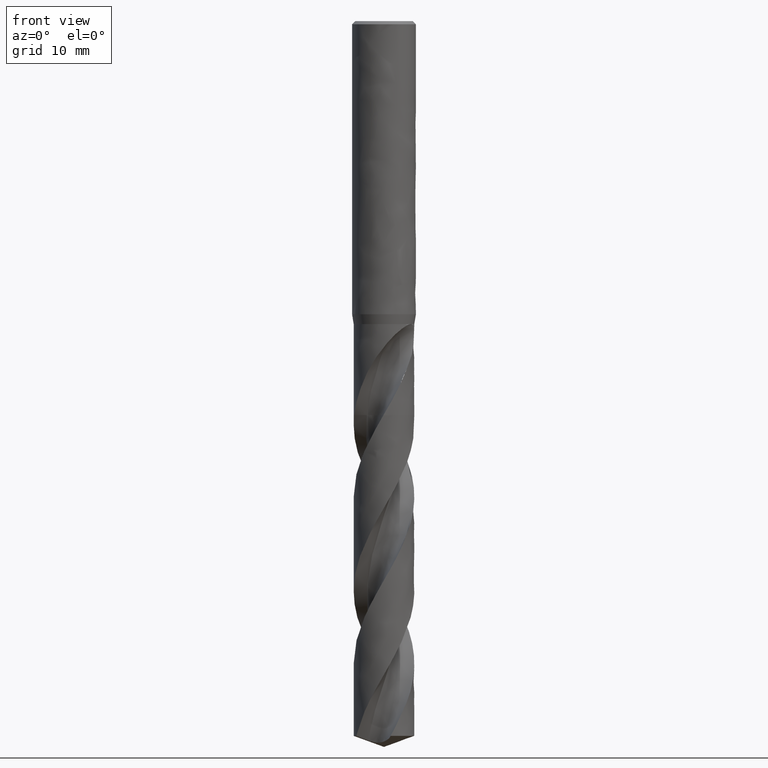
[diagram: clean part render]
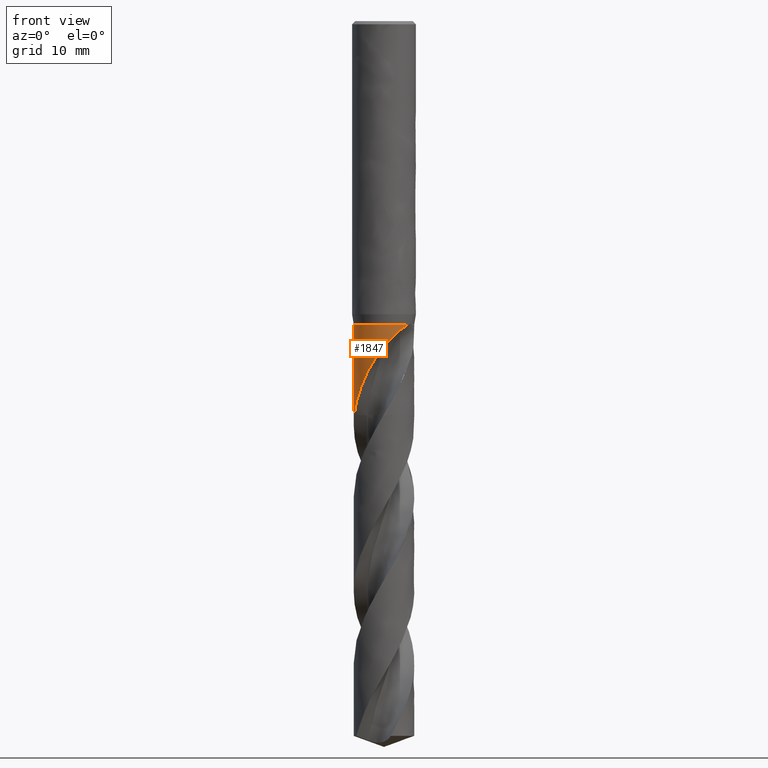
[diagram: same view with one face highlighted and labeled with its STEP entity id]
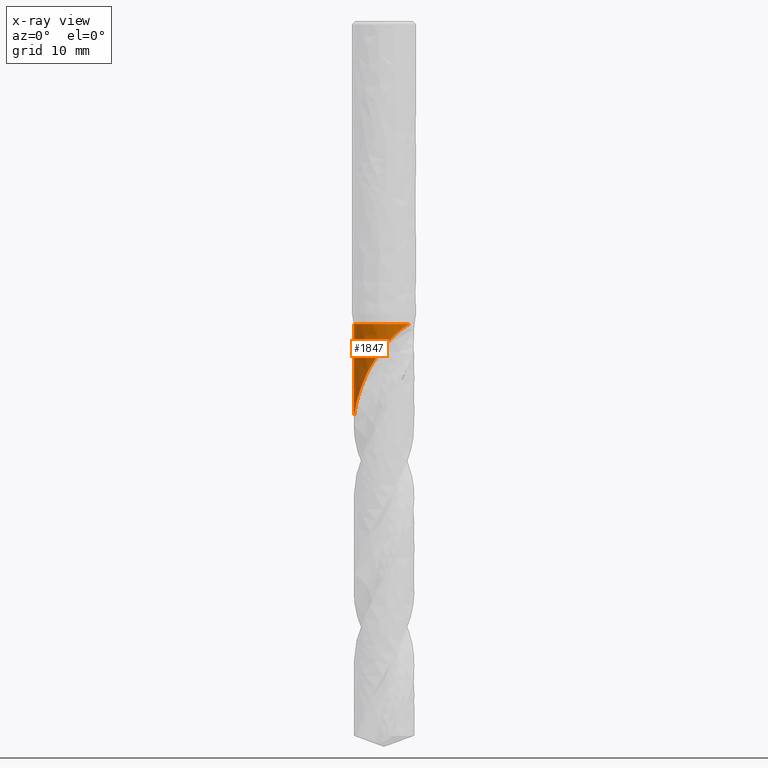
[diagram: x-ray of the same camera — body ghosted, the highlighted face saturated]
A machine part, front view. The second image highlights one B-rep face of the part: STEP entity #1847.
The next image is the same camera in x-ray: the body ghosted, the highlighted face saturated — about 0% of this face is hidden behind the body in this view.
In plain terms, the highlighted face is a freeform B-spline surface patch.
Its self-contained STEP definition (entity closure, byte-faithful):
#131 = VERTEX_POINT('', #132);
#132 = CARTESIAN_POINT('', (-3.8, 2.55951181021797E-15, -38.));
#155 = EDGE_CURVE('', #156, #131, #158, .T.);
#156 = VERTEX_POINT('', #157);
#157 = CARTESIAN_POINT('', (3.2369671558506, -1.99048828982853, -38.));
#158 = CIRCLE('', #159, 3.8);
#159 = AXIS2_PLACEMENT_3D('', #160, #161, #162);
#160 = CARTESIAN_POINT('', (1.42477179352876E-31, 2.32682891837997E-15, -38.));
#161 = DIRECTION('', (3.74939945665464E-33, 6.12323399573677E-17, -1.));
#162 = DIRECTION('', (-1., 6.12323399573677E-17, 0.));
#1443 = EDGE_CURVE('', #1444, #156, #1446, .T.);
#1444 = VERTEX_POINT('', #1445);
#1445 = CARTESIAN_POINT('', (0.489564107406678, -3.76833212240364, -40.2414946850582));
#1446 = B_SPLINE_CURVE_WITH_KNOTS('', 3, (#1447, #1448, #1449, #1450, #1451, #1452, #1453, #1454, #1455, #1456, #1457, #1458, #1459, #1460, #1461, #1462, #1463, #1464, #1465, #1466, #1467, #1468, #1469, #1470, #1471, #1472, #1473, #1474, #1475, #1476, #1477, #1478, #1479, #1480, #1481, #1482, #1483, #1484, #1485, #1486, #1487, #1488, #1489, #1490, #1491, #1492, #1493, #1494, #1495), .UNSPECIFIED., .F., .U., (4, 3, 3, 3, 3, 3, 3, 3, 3, 3, 3, 3, 3, 3, 3, 3, 4), (0., 0.298554134722033, 0.597278639386673, 0.896149436103776, 1.19514646549207, 1.49424399947561, 1.79341047722752, 2.09262276944499, 2.39185257058812, 2.69106328349848, 2.99020496537065, 3.18874874311696, 3.38722023998796, 3.58558962653807, 3.78381663324364, 3.98184667497992, 4.13752270797816), .UNSPECIFIED.);
#1447 = CARTESIAN_POINT('', (0.489564107406676, -3.76833212240363, -40.2414946850582));
#1448 = CARTESIAN_POINT('', (0.553213385328741, -3.76006310552273, -40.1654405330216));
#1449 = CARTESIAN_POINT('', (0.617957758170941, -3.75001104250627, -40.0904574082345));
#1450 = CARTESIAN_POINT('', (0.683611731793444, -3.738004146621, -40.0166384983201));
#1451 = CARTESIAN_POINT('', (0.74930317086163, -3.72599039899956, -39.9427774636384));
#1452 = CARTESIAN_POINT('', (0.815942929246641, -3.71201239502699, -39.8700353121639));
#1453 = CARTESIAN_POINT('', (0.883319341962836, -3.69590948754377, -39.7985072538714));
#1454 = CARTESIAN_POINT('', (0.950728750411051, -3.6797986941076, -39.7269441666934));
#1455 = CARTESIAN_POINT('', (1.01892006119677, -3.66155018030485, -39.6565489037785));
#1456 = CARTESIAN_POINT('', (1.08766649170645, -3.64101381524722, -39.5874327156507));
#1457 = CARTESIAN_POINT('', (1.15644195832689, -3.6204687763404, -39.5182873352393));
#1458 = CARTESIAN_POINT('', (1.2258229301308, -3.59761893538566, -39.4503717300631));
#1459 = CARTESIAN_POINT('', (1.29556600875072, -3.57232539348988, -39.3838180916369));
#1460 = CARTESIAN_POINT('', (1.36533253074699, -3.54702334944546, -39.31724208193));
#1461 = CARTESIAN_POINT('', (1.43551735499118, -3.5192553184531, -39.2519755115987));
#1462 = CARTESIAN_POINT('', (1.50584929262413, -3.48889924014773, -39.1881644377048));
#1463 = CARTESIAN_POINT('', (1.57619744218887, -3.45853616458496, -39.1243386549772));
#1464 = CARTESIAN_POINT('', (1.64675567681687, -3.42555660942475, -39.0619116644643));
#1465 = CARTESIAN_POINT('', (1.71723650748813, -3.38985232382621, -39.0010662411081));
#1466 = CARTESIAN_POINT('', (1.78772813161998, -3.35414257046011, -38.9402114998612));
#1467 = CARTESIAN_POINT('', (1.85821318321162, -3.31567118637305, -38.8808771771637));
#1468 = CARTESIAN_POINT('', (1.92838322130208, -3.27434545394963, -38.8232932845852));
#1469 = CARTESIAN_POINT('', (1.99855736551388, -3.23301730327938, -38.7657060223854));
#1470 = CARTESIAN_POINT('', (2.06849685106044, -3.18878681767468, -38.7098026662392));
#1471 = CARTESIAN_POINT('', (2.13786644394484, -3.14158034559911, -38.6558756053275));
#1472 = CARTESIAN_POINT('', (2.20723161165858, -3.09437688488179, -38.6019519844885));
#1473 = CARTESIAN_POINT('', (2.2761190545756, -3.04413459708637, -38.5499316023483));
#1474 = CARTESIAN_POINT('', (2.34415894366514, -2.99080571867093, -38.500191736047));
#1475 = CARTESIAN_POINT('', (2.41218313524125, -2.93748914378502, -38.4504633452526));
#1476 = CARTESIAN_POINT('', (2.47946705619359, -2.88100259697664, -38.4029343492823));
#1477 = CARTESIAN_POINT('', (2.54559514527083, -2.82133751195662, -38.358101168348));
#1478 = CARTESIAN_POINT('', (2.58948511920682, -2.78173710821051, -38.3283448700769));
#1479 = CARTESIAN_POINT('', (2.63290998265216, -2.74069740590752, -38.2997476385831));
#1480 = CARTESIAN_POINT('', (2.67573346248445, -2.6982309830222, -38.2724949033418));
#1481 = CARTESIAN_POINT('', (2.71854135221041, -2.65578002025481, -38.2452520895979));
#1482 = CARTESIAN_POINT('', (2.76078973820602, -2.61186185585427, -38.219325896941));
#1483 = CARTESIAN_POINT('', (2.8023270963493, -2.5665079086312, -38.1949447994857));
#1484 = CARTESIAN_POINT('', (2.84384308420497, -2.52117729526804, -38.1705762457042));
#1485 = CARTESIAN_POINT('', (2.88469624928916, -2.47435982500247, -38.1477226539312));
#1486 = CARTESIAN_POINT('', (2.92471547503099, -2.426116112249, -38.126668582598));
#1487 = CARTESIAN_POINT('', (2.9647059769297, -2.37790702647322, -38.1056296228475));
#1488 = CARTESIAN_POINT('', (3.00391898156766, -2.32820590027164, -38.0863577216458));
#1489 = CARTESIAN_POINT('', (3.04215777645898, -2.27712012487927, -38.0692103562899));
#1490 = CARTESIAN_POINT('', (3.08035857600754, -2.22608511001821, -38.0520800291285));
#1491 = CARTESIAN_POINT('', (3.11765255229576, -2.17357853481935, -38.0370398815318));
#1492 = CARTESIAN_POINT('', (3.15380925616222, -2.11978470032819, -38.0245403586239));
#1493 = CARTESIAN_POINT('', (3.18223288408691, -2.07749611279913, -38.0147141922321));
#1494 = CARTESIAN_POINT('', (3.20999590945161, -2.03434940631538, -38.0064447756962));
#1495 = CARTESIAN_POINT('', (3.2369671558506, -1.99048828982853, -38.));
#1617 = VERTEX_POINT('', #1618);
#1618 = CARTESIAN_POINT('', (-3.73685384723852, -0.689871962308001, -49.4));
#1625 = EDGE_CURVE('', #1444, #1617, #1626, .T.);
#1626 = B_SPLINE_CURVE_WITH_KNOTS('', 3, (#1627, #1628, #1629, #1630, #1631, #1632, #1633, #1634, #1635, #1636, #1637, #1638, #1639, #1640, #1641, #1642, #1643, #1644, #1645, #1646, #1647, #1648, #1649, #1650, #1651, #1652, #1653, #1654, #1655, #1656, #1657, #1658, #1659, #1660, #1661, #1662, #1663, #1664, #1665, #1666, #1667, #1668, #1669, #1670, #1671, #1672, #1673, #1674, #1675, #1676, #1677, #1678, #1679, #1680, #1681, #1682, #1683, #1684, #1685, #1686, #1687, #1688, #1689, #1690, #1691, #1692, #1693, #1694, #1695, #1696, #1697, #1698, #1699, #1700, #1701, #1702, #1703, #1704, #1705, #1706, #1707, #1708, #1709, #1710, #1711, #1712, #1713, #1714, #1715, #1716, #1717, #1718, #1719, #1720, #1721, #1722, #1723, #1724, #1725, #1726, #1727, #1728, #1729, #1730, #1731, #1732, #1733, #1734, #1735), .UNSPECIFIED., .F., .U., (4, 3, 3, 3, 3, 3, 3, 3, 3, 3, 3, 3, 3, 3, 3, 3, 3, 3, 3, 3, 3, 3, 3, 3, 3, 3, 3, 3, 3, 3, 3, 3, 3, 3, 3, 3, 4), (0., 0.294134643158029, 0.588308651378749, 0.719408372292972, 0.77774237243411, 1.07315450773919, 1.36858020743067, 1.6640223439542, 1.95948719698412, 2.25498054294707, 2.55050294702691, 2.84606495430719, 3.1416715035635, 3.3387444555777, 3.78236233940675, 4.07803646696196, 4.37373792616006, 4.66951707475968, 4.86665790557929, 4.95425006584668, 5.15135784146883, 5.34841308440191, 5.54545205344216, 5.74251208133996, 6.18597374517212, 6.48152257214724, 6.77704682088159, 7.22026659378791, 7.66345803603435, 8.10658773236636, 8.4020535197379, 8.69752907880754, 8.99298797361968, 9.43602196173881, 9.73143849585195, 10.3955751434683, 10.8422441693831), .UNSPECIFIED.);
#1627 = CARTESIAN_POINT('', (0.489564107406678, -3.76833212240364, -40.2414946850582));
#1628 = CARTESIAN_POINT('', (0.426857028617422, -3.77647873317423, -40.3164230088303));
#1629 = CARTESIAN_POINT('', (0.364290718600264, -3.78301482215336, -40.3916615597657));
#1630 = CARTESIAN_POINT('', (0.301967457183936, -3.78798305893807, -40.4671859029295));
#1631 = CARTESIAN_POINT('', (0.239635854828688, -3.79295196063921, -40.5427203537788));
#1632 = CARTESIAN_POINT('', (0.177530398089361, -3.79635389373453, -40.6185610119576));
#1633 = CARTESIAN_POINT('', (0.115753507526413, -3.79823658103274, -40.694688820164));
#1634 = CARTESIAN_POINT('', (0.0882224106741237, -3.79907560750166, -40.7286154558653));
#1635 = CARTESIAN_POINT('', (0.0607543148394016, -3.79961307477393, -40.7626021000416));
#1636 = CARTESIAN_POINT('', (0.0333582034033515, -3.7998535801088, -40.7966473215077));
#1637 = CARTESIAN_POINT('', (0.0211680571754825, -3.79996059512104, -40.8117960490562));
#1638 = CARTESIAN_POINT('', (0.00899192624626865, -3.80000882181379, -40.8269565940103));
#1639 = CARTESIAN_POINT('', (-0.00316950859488086, -3.79999867818599, -40.8421287548095));
#1640 = CARTESIAN_POINT('', (-0.0647568406157482, -3.79994730933176, -40.9189628551294));
#1641 = CARTESIAN_POINT('', (-0.125976372067696, -3.79839850863944, -40.996106133143));
#1642 = CARTESIAN_POINT('', (-0.186740985731427, -3.79540877959783, -41.0735348379153));
#1643 = CARTESIAN_POINT('', (-0.247508389513097, -3.79241891327736, -41.1509670979677));
#1644 = CARTESIAN_POINT('', (-0.307835780958171, -3.78798720721659, -41.2287036055332));
#1645 = CARTESIAN_POINT('', (-0.367636795484675, -3.78217439928488, -41.3067255350489));
#1646 = CARTESIAN_POINT('', (-0.427441137207269, -3.77636126794141, -41.384751805532));
#1647 = CARTESIAN_POINT('', (-0.486732160254077, -3.76916558117911, -41.4630824259465));
#1648 = CARTESIAN_POINT('', (-0.545425517410603, -3.76065300246614, -41.541702248509));
#1649 = CARTESIAN_POINT('', (-0.604123387491514, -3.75213976922213, -41.6203281161391));
#1650 = CARTESIAN_POINT('', (-0.662238691224882, -3.7423073941161, -41.6992592329338));
#1651 = CARTESIAN_POINT('', (-0.719700593242229, -3.73122380139372, -41.7784755566417));
#1652 = CARTESIAN_POINT('', (-0.777168036555299, -3.72013913983332, -41.8576995195168));
#1653 = CARTESIAN_POINT('', (-0.833994375450371, -3.70780057500868, -41.937225592146));
#1654 = CARTESIAN_POINT('', (-0.890109588270239, -3.69428002740312, -42.0170384403543));
#1655 = CARTESIAN_POINT('', (-0.946230319327442, -3.68075815021888, -42.0968591371693));
#1656 = CARTESIAN_POINT('', (-1.00164967587808, -3.66605168794592, -42.176984178901));
#1657 = CARTESIAN_POINT('', (-1.05630245037947, -3.65023631198346, -42.2573997829805));
#1658 = CARTESIAN_POINT('', (-1.11096254894412, -3.63441881658946, -42.3378261636214));
#1659 = CARTESIAN_POINT('', (-1.16486938225241, -3.61748837737431, -42.4185568024827));
#1660 = CARTESIAN_POINT('', (-1.21797273867607, -3.59951974683322, -42.4995721349306));
#1661 = CARTESIAN_POINT('', (-1.27108409791595, -3.58154840837199, -42.5805996766032));
#1662 = CARTESIAN_POINT('', (-1.32340180679898, -3.56253508481809, -42.661926944549));
#1663 = CARTESIAN_POINT('', (-1.37487506760855, -3.54255819267219, -42.7435399042903));
#1664 = CARTESIAN_POINT('', (-1.40919090899657, -3.52924013487825, -42.7979490739764));
#1665 = CARTESIAN_POINT('', (-1.44313474439613, -3.51549262892903, -42.8524907881979));
#1666 = CARTESIAN_POINT('', (-1.47669103796528, -3.50134025458724, -42.9071624521739));
#1667 = CARTESIAN_POINT('', (-1.55222739031678, -3.46948278103496, -43.0302302178441));
#1668 = CARTESIAN_POINT('', (-1.62581853570386, -3.43556429947042, -43.1539904926419));
#1669 = CARTESIAN_POINT('', (-1.69732731496291, -3.39986470111397, -43.278402498738));
#1670 = CARTESIAN_POINT('', (-1.74498836897062, -3.37607069284043, -43.3613238882959));
#1671 = CARTESIAN_POINT('', (-1.79173499827859, -3.35148081091124, -43.4445514513327));
#1672 = CARTESIAN_POINT('', (-1.83753580190948, -3.32617831402673, -43.5280724533815));
#1673 = CARTESIAN_POINT('', (-1.88334083929332, -3.30087347821992, -43.611601175978));
#1674 = CARTESIAN_POINT('', (-1.928205899516, -3.27485292244206, -43.6954368572295));
#1675 = CARTESIAN_POINT('', (-1.97212275572716, -3.24818900871609, -43.7795548048321));
#1676 = CARTESIAN_POINT('', (-2.01605115017789, -3.22151808960197, -43.8636948526741));
#1677 = CARTESIAN_POINT('', (-2.05903823279552, -3.19419846590711, -43.9481286971536));
#1678 = CARTESIAN_POINT('', (-2.10105118974424, -3.16632024565988, -44.0328535795703));
#1679 = CARTESIAN_POINT('', (-2.12905339773379, -3.14773903218579, -44.0893238675869));
#1680 = CARTESIAN_POINT('', (-2.15662447118305, -3.12890863361917, -44.1459283123892));
#1681 = CARTESIAN_POINT('', (-2.18374683485192, -3.1098633026669, -44.2026727511746));
#1682 = CARTESIAN_POINT('', (-2.19579764348166, -3.10140122165516, -44.227885021792));
#1683 = CARTESIAN_POINT('', (-2.20775997409505, -3.09289667394614, -44.2531255378891));
#1684 = CARTESIAN_POINT('', (-2.21963201514224, -3.08435304680829, -44.2783950545063));
#1685 = CARTESIAN_POINT('', (-2.24634755219216, -3.06512740679957, -44.3352587988902));
#1686 = CARTESIAN_POINT('', (-2.27260554027978, -3.04570433609036, -44.3922729389132));
#1687 = CARTESIAN_POINT('', (-2.29842032557624, -3.02609715755758, -44.4494217445792));
#1688 = CARTESIAN_POINT('', (-2.32422823077837, -3.00649520468275, -44.5065553190833));
#1689 = CARTESIAN_POINT('', (-2.34959470565118, -2.98670849923391, -44.5638267081091));
#1690 = CARTESIAN_POINT('', (-2.37456470081619, -2.96672251510614, -44.6211990851119));
#1691 = CARTESIAN_POINT('', (-2.39953263382331, -2.94673818152956, -44.678566723992));
#1692 = CARTESIAN_POINT('', (-2.42410561984834, -2.92655385775045, -44.7360380081571));
#1693 = CARTESIAN_POINT('', (-2.44835662358845, -2.90612281979453, -44.7935556468732));
#1694 = CARTESIAN_POINT('', (-2.4726102191937, -2.88568959823849, -44.8510794328796));
#1695 = CARTESIAN_POINT('', (-2.49654323408581, -2.86500877974838, -44.9086517564209));
#1696 = CARTESIAN_POINT('', (-2.52025091205973, -2.84399988401232, -44.9661957544093));
#1697 = CARTESIAN_POINT('', (-2.57360240313617, -2.79672170204016, -45.0956921183534));
#1698 = CARTESIAN_POINT('', (-2.62580529657597, -2.74777817254914, -45.2250696813329));
#1699 = CARTESIAN_POINT('', (-2.67668620325813, -2.69728585235002, -45.3543468073125));
#1700 = CARTESIAN_POINT('', (-2.71059621964015, -2.66363481276038, -45.4405046560153));
#1701 = CARTESIAN_POINT('', (-2.74392546803175, -2.629290896688, -45.5266252920849));
#1702 = CARTESIAN_POINT('', (-2.77664955542173, -2.59426622503865, -45.6126942356705));
#1703 = CARTESIAN_POINT('', (-2.80937092143228, -2.55924446608844, -45.6987560216462));
#1704 = CARTESIAN_POINT('', (-2.84149382482305, -2.52353487132522, -45.7847703659934));
#1705 = CARTESIAN_POINT('', (-2.87298816715267, -2.48715479843952, -45.8707263960143));
#1706 = CARTESIAN_POINT('', (-2.92022258299147, -2.43259288782889, -45.9996410697472));
#1707 = CARTESIAN_POINT('', (-2.96605001216453, -2.37651365857358, -46.1284460668002));
#1708 = CARTESIAN_POINT('', (-3.01035136504234, -2.31900510111291, -46.257121010689));
#1709 = CARTESIAN_POINT('', (-3.05464988617248, -2.26150021960598, -46.3857877296603));
#1710 = CARTESIAN_POINT('', (-3.09742990557184, -2.2025561434173, -46.5143513655176));
#1711 = CARTESIAN_POINT('', (-3.13857107841339, -2.14228186421559, -46.6427986703013));
#1712 = CARTESIAN_POINT('', (-3.17970651942193, -2.0820159824921, -46.7712280796667));
#1713 = CARTESIAN_POINT('', (-3.21921183316865, -2.02040829616184, -46.8995676153332));
#1714 = CARTESIAN_POINT('', (-3.25697808665567, -1.95757343235056, -47.0278006227228));
#1715 = CARTESIAN_POINT('', (-3.282159508517, -1.91567700188323, -47.1133026028632));
#1716 = CARTESIAN_POINT('', (-3.30657185347522, -1.87322866627724, -47.1987659422868));
#1717 = CARTESIAN_POINT('', (-3.33018279749401, -1.83026843257347, -47.2841881006735));
#1718 = CARTESIAN_POINT('', (-3.35379452237823, -1.78730677808105, -47.3696130841574));
#1719 = CARTESIAN_POINT('', (-3.37660667723607, -1.7438290390192, -47.455004832584));
#1720 = CARTESIAN_POINT('', (-3.39857830126746, -1.69990162366944, -47.5403762272666));
#1721 = CARTESIAN_POINT('', (-3.42054868614119, -1.65597668574205, -47.6257428071656));
#1722 = CARTESIAN_POINT('', (-3.44167967475872, -1.61159943254658, -47.7110979875308));
#1723 = CARTESIAN_POINT('', (-3.46192894400957, -1.56685927467299, -47.7964668127267));
#1724 = CARTESIAN_POINT('', (-3.49229226923086, -1.49977241108603, -47.9244754520049));
#1725 = CARTESIAN_POINT('', (-3.52068529143728, -1.43184698707173, -48.0525297776358));
#1726 = CARTESIAN_POINT('', (-3.54707281819383, -1.36318539547285, -48.1805847454624));
#1727 = CARTESIAN_POINT('', (-3.56466810863945, -1.31740161824405, -48.2659722231409));
#1728 = CARTESIAN_POINT('', (-3.58137409847083, -1.2712847186601, -48.3513696141849));
#1729 = CARTESIAN_POINT('', (-3.59718236533092, -1.22485877984046, -48.4367598990602));
#1730 = CARTESIAN_POINT('', (-3.63272150462995, -1.1204869393723, -48.6287289021031));
#1731 = CARTESIAN_POINT('', (-3.66373370330557, -1.01450481715447, -48.8207204554914));
#1732 = CARTESIAN_POINT('', (-3.69007070321845, -0.907401898415986, -49.0126682006394));
#1733 = CARTESIAN_POINT('', (-3.70778380810255, -0.835369197679994, -49.14176379062));
#1734 = CARTESIAN_POINT('', (-3.72338964464562, -0.762803984492145, -49.2708962789031));
#1735 = CARTESIAN_POINT('', (-3.73685384723852, -0.689871962308001, -49.4));
#1776 = VERTEX_POINT('', #1777);
#1777 = CARTESIAN_POINT('', (-3.8, 3.25756048573196E-15, -49.4));
#1784 = EDGE_CURVE('', #131, #1776, #1785, .T.);
#1785 = LINE('', #1786, #1787);
#1786 = CARTESIAN_POINT('', (-3.8, 2.55951181021797E-15, -38.));
#1787 = VECTOR('', #1788, 11.4);
#1788 = DIRECTION('', (0., 6.98048675513991E-16, -11.4));
#1847 = ADVANCED_FACE('', (#1848), #1861, .T.);
#1848 = FACE_OUTER_BOUND('', #1849, .T.);
#1849 = EDGE_LOOP('', (#1850, #1857, #1858, #1859, #1860));
#1850 = ORIENTED_EDGE('', *, *, #1851, .F.);
#1851 = EDGE_CURVE('', #1617, #1776, #1852, .T.);
#1852 = CIRCLE('', #1853, 3.8);
#1853 = AXIS2_PLACEMENT_3D('', #1854, #1855, #1856);
#1854 = CARTESIAN_POINT('', (1.85220333158739E-31, 3.02487759389396E-15, -49.4));
#1855 = DIRECTION('', (3.74939945665464E-33, 6.12323399573677E-17, -1.));
#1856 = DIRECTION('', (-1., 6.12323399573677E-17, 0.));
#1857 = ORIENTED_EDGE('', *, *, #1625, .F.);
#1858 = ORIENTED_EDGE('', *, *, #1443, .T.);
#1859 = ORIENTED_EDGE('', *, *, #155, .T.);
#1860 = ORIENTED_EDGE('', *, *, #1784, .T.);
#1861 = (
   BOUNDED_SURFACE ()
   B_SPLINE_SURFACE (2, 1, ((#1862, #1863), (#1864, #1865), (#1866, #1867), (#1868, #1869), (#1870, #1871), (#1872, #1873), (#1874, #1875), (#1876, #1877), (#1878, #1879)), .UNSPECIFIED., .T., .F., .U.)
   B_SPLINE_SURFACE_WITH_KNOTS ((3, 2, 2, 2, 3), (2, 2), (0., 5.96902604182061, 11.9380520836412, 17.9070781254618, 23.8761041672824), (0., 0.220857841222554), .UNSPECIFIED.)
   GEOMETRIC_REPRESENTATION_ITEM ()
   RATIONAL_B_SPLINE_SURFACE (((1., 1.), (0.707106781186548, 0.707106781186548), (1., 1.), (0.707106781186548, 0.707106781186548), (1., 1.), (0.707106781186548, 0.707106781186548), (1., 1.), (0.707106781186548, 0.707106781186548), (1., 1.)))
   REPRESENTATION_ITEM ('')
   SURFACE ()
);
#1862 = CARTESIAN_POINT('', (-3.8, 2.55951181021797E-15, -38.));
#1863 = CARTESIAN_POINT('', (-3.8, 3.25756048573196E-15, -49.4));
#1864 = CARTESIAN_POINT('', (-3.8, 3.8, -38.));
#1865 = CARTESIAN_POINT('', (-3.8, 3.8, -49.4));
#1866 = CARTESIAN_POINT('', (1.4791141972894E-31, 3.8, -38.));
#1867 = CARTESIAN_POINT('', (1.97215226305253E-31, 3.8, -49.4));
#1868 = CARTESIAN_POINT('', (3.8, 3.8, -38.));
#1869 = CARTESIAN_POINT('', (3.8, 3.8, -49.4));
#1870 = CARTESIAN_POINT('', (3.8, 2.55951181021797E-15, -38.));
#1871 = CARTESIAN_POINT('', (3.8, 3.25756048573196E-15, -49.4));
#1872 = CARTESIAN_POINT('', (3.8, -3.8, -38.));
#1873 = CARTESIAN_POINT('', (3.8, -3.8, -49.4));
#1874 = CARTESIAN_POINT('', (4.65365783675994E-16, -3.8, -38.));
#1875 = CARTESIAN_POINT('', (4.65365783675994E-16, -3.8, -49.4));
#1876 = CARTESIAN_POINT('', (-3.8, -3.8, -38.));
#1877 = CARTESIAN_POINT('', (-3.8, -3.8, -49.4));
#1878 = CARTESIAN_POINT('', (-3.8, 2.55951181021797E-15, -38.));
#1879 = CARTESIAN_POINT('', (-3.8, 3.25756048573196E-15, -49.4));